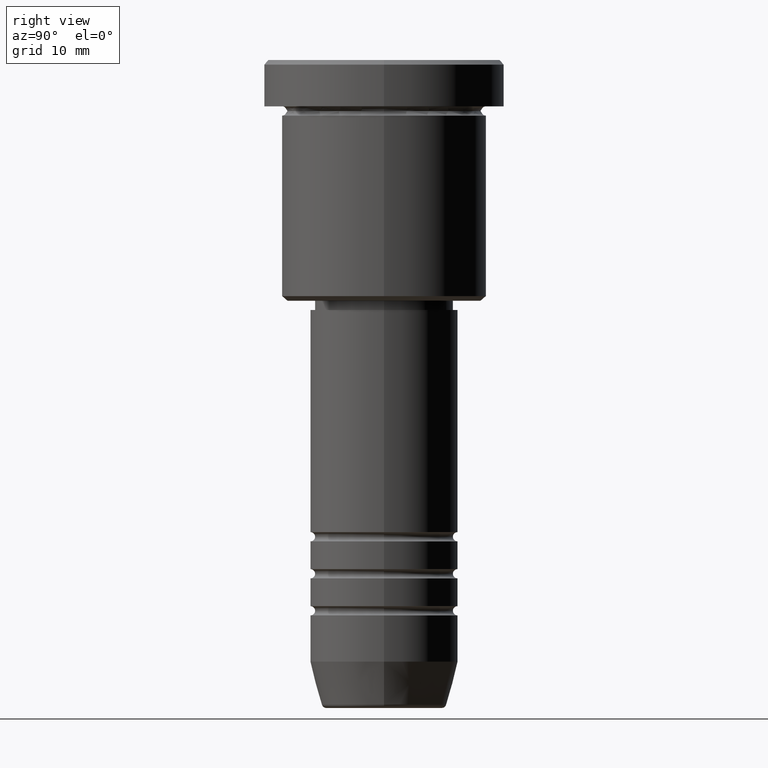
[diagram: clean part render]
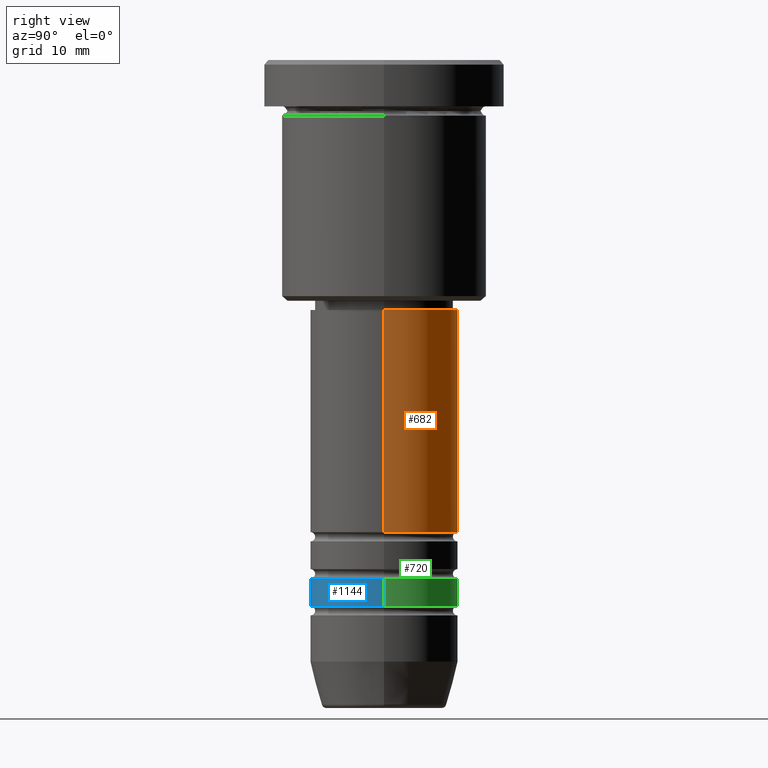
[diagram: same view with three faces highlighted in distinct colors, each labeled with its STEP entity id]
A machine part, right view with three faces highlighted in distinct colors.
Their STEP definitions:

[orange] entity #682 — the highlighted cylindrical surface (partial cylindrical patch) has radius 8 mm, axis along (-0, -0, 1).
#7 = VECTOR ( 'NONE', #954, 1000.000000000000000 ) ;
#45 = CIRCLE ( 'NONE', #925, 8.000000000000000000 ) ;
#95 = CIRCLE ( 'NONE', #771, 8.000000000000000000 ) ;
#106 = DIRECTION ( 'NONE',  ( -0.000000000000000000, -0.000000000000000000, 1.000000000000000000 ) ) ;
#119 = LINE ( 'NONE', #135, #7 ) ;
#124 = CARTESIAN_POINT ( 'NONE',  ( 8.000000000000000000, 0.000000000000000000, 0.000000000000000000 ) ) ;
#135 = CARTESIAN_POINT ( 'NONE',  ( -8.000000000000000000, 9.797174393178825657E-16, 0.000000000000000000 ) ) ;
#193 = FACE_OUTER_BOUND ( 'NONE', #818, .T. ) ;
#194 = VERTEX_POINT ( 'NONE', #991 ) ;
#269 = CARTESIAN_POINT ( 'NONE',  ( -8.000000000000000000, 9.797174393178825657E-16, -51.00000000000000000 ) ) ;
#275 = ORIENTED_EDGE ( 'NONE', *, *, #390, .T. ) ;
#355 = DIRECTION ( 'NONE',  ( 1.000000000000000000, 0.000000000000000000, 0.000000000000000000 ) ) ;
#378 = CARTESIAN_POINT ( 'NONE',  ( 0.000000000000000000, 0.000000000000000000, 0.000000000000000000 ) ) ;
#390 = EDGE_CURVE ( 'NONE', #881, #194, #119, .T. ) ;
#406 = EDGE_CURVE ( 'NONE', #816, #464, #1050, .T. ) ;
#464 = VERTEX_POINT ( 'NONE', #1120 ) ;
#486 = CARTESIAN_POINT ( 'NONE',  ( 8.000000000000000000, 0.000000000000000000, -51.00000000000000000 ) ) ;
#499 = ORIENTED_EDGE ( 'NONE', *, *, #406, .F. ) ;
#501 = CARTESIAN_POINT ( 'NONE',  ( 0.000000000000000000, 0.000000000000000000, -27.00000000000000355 ) ) ;
#516 = VECTOR ( 'NONE', #867, 1000.000000000000000 ) ;
#578 = DIRECTION ( 'NONE',  ( -0.000000000000000000, -0.000000000000000000, 1.000000000000000000 ) ) ;
#620 = ORIENTED_EDGE ( 'NONE', *, *, #1135, .T. ) ;
#628 = AXIS2_PLACEMENT_3D ( 'NONE', #378, #106, #746 ) ;
#659 = EDGE_CURVE ( 'NONE', #464, #194, #45, .T. ) ;
#682 = ADVANCED_FACE ( 'NONE', ( #193 ), #853, .T. ) ;
#712 = CARTESIAN_POINT ( 'NONE',  ( 0.000000000000000000, 0.000000000000000000, -51.00000000000000000 ) ) ;
#746 = DIRECTION ( 'NONE',  ( 1.000000000000000000, 0.000000000000000000, 0.000000000000000000 ) ) ;
#771 = AXIS2_PLACEMENT_3D ( 'NONE', #712, #1179, #355 ) ;
#780 = ORIENTED_EDGE ( 'NONE', *, *, #659, .F. ) ;
#816 = VERTEX_POINT ( 'NONE', #486 ) ;
#818 = EDGE_LOOP ( 'NONE', ( #620, #275, #780, #499 ) ) ;
#853 = CYLINDRICAL_SURFACE ( 'NONE', #628, 8.000000000000000000 ) ;
#861 = DIRECTION ( 'NONE',  ( 1.000000000000000000, 0.000000000000000000, 0.000000000000000000 ) ) ;
#867 = DIRECTION ( 'NONE',  ( -0.000000000000000000, -0.000000000000000000, 1.000000000000000000 ) ) ;
#881 = VERTEX_POINT ( 'NONE', #269 ) ;
#925 = AXIS2_PLACEMENT_3D ( 'NONE', #501, #578, #861 ) ;
#954 = DIRECTION ( 'NONE',  ( -0.000000000000000000, -0.000000000000000000, 1.000000000000000000 ) ) ;
#991 = CARTESIAN_POINT ( 'NONE',  ( -8.000000000000000000, 9.797174393178825657E-16, -27.00000000000000355 ) ) ;
#1050 = LINE ( 'NONE', #124, #516 ) ;
#1120 = CARTESIAN_POINT ( 'NONE',  ( 8.000000000000000000, 0.000000000000000000, -27.00000000000000355 ) ) ;
#1135 = EDGE_CURVE ( 'NONE', #816, #881, #95, .T. ) ;
#1179 = DIRECTION ( 'NONE',  ( -0.000000000000000000, -0.000000000000000000, 1.000000000000000000 ) ) ;

[blue] entity #1144 — the highlighted cylindrical surface (partial cylindrical patch) has radius 8 mm, axis along (-0, -0, 1).
#30 = EDGE_CURVE ( 'NONE', #1145, #838, #801, .T. ) ;
#42 = AXIS2_PLACEMENT_3D ( 'NONE', #265, #527, #1092 ) ;
#138 = CARTESIAN_POINT ( 'NONE',  ( 8.000000000000000000, 0.000000000000000000, 0.000000000000000000 ) ) ;
#139 = ORIENTED_EDGE ( 'NONE', *, *, #752, .F. ) ;
#151 = CIRCLE ( 'NONE', #565, 8.000000000000000000 ) ;
#159 = CARTESIAN_POINT ( 'NONE',  ( 8.000000000000000000, 0.000000000000000000, -58.99999999999999289 ) ) ;
#179 = CARTESIAN_POINT ( 'NONE',  ( 8.000000000000000000, 0.000000000000000000, -55.99999999999999289 ) ) ;
#196 = ORIENTED_EDGE ( 'NONE', *, *, #30, .T. ) ;
#210 = CARTESIAN_POINT ( 'NONE',  ( 0.000000000000000000, 0.000000000000000000, -55.99999999999999289 ) ) ;
#242 = VERTEX_POINT ( 'NONE', #755 ) ;
#259 = DIRECTION ( 'NONE',  ( -0.000000000000000000, -0.000000000000000000, 1.000000000000000000 ) ) ;
#265 = CARTESIAN_POINT ( 'NONE',  ( 0.000000000000000000, 0.000000000000000000, -58.99999999999999289 ) ) ;
#279 = ORIENTED_EDGE ( 'NONE', *, *, #1130, .T. ) ;
#436 = CARTESIAN_POINT ( 'NONE',  ( 0.000000000000000000, 0.000000000000000000, 0.000000000000000000 ) ) ;
#471 = DIRECTION ( 'NONE',  ( 1.000000000000000000, 0.000000000000000000, 0.000000000000000000 ) ) ;
#527 = DIRECTION ( 'NONE',  ( -0.000000000000000000, -0.000000000000000000, 1.000000000000000000 ) ) ;
#565 = AXIS2_PLACEMENT_3D ( 'NONE', #210, #959, #471 ) ;
#632 = FACE_OUTER_BOUND ( 'NONE', #695, .T. ) ;
#670 = DIRECTION ( 'NONE',  ( -0.000000000000000000, -0.000000000000000000, 1.000000000000000000 ) ) ;
#695 = EDGE_LOOP ( 'NONE', ( #139, #279, #196, #1176 ) ) ;
#749 = CARTESIAN_POINT ( 'NONE',  ( -8.000000000000000000, 9.797174393178825657E-16, 0.000000000000000000 ) ) ;
#752 = EDGE_CURVE ( 'NONE', #1091, #242, #920, .T. ) ;
#755 = CARTESIAN_POINT ( 'NONE',  ( -8.000000000000000000, 9.797174393178825657E-16, -55.99999999999999289 ) ) ;
#801 = LINE ( 'NONE', #138, #1061 ) ;
#812 = EDGE_CURVE ( 'NONE', #242, #838, #151, .T. ) ;
#838 = VERTEX_POINT ( 'NONE', #179 ) ;
#862 = DIRECTION ( 'NONE',  ( -0.000000000000000000, -0.000000000000000000, 1.000000000000000000 ) ) ;
#870 = CARTESIAN_POINT ( 'NONE',  ( -8.000000000000000000, 9.797174393178825657E-16, -58.99999999999999289 ) ) ;
#890 = CYLINDRICAL_SURFACE ( 'NONE', #1040, 8.000000000000000000 ) ;
#920 = LINE ( 'NONE', #749, #1081 ) ;
#959 = DIRECTION ( 'NONE',  ( -0.000000000000000000, -0.000000000000000000, 1.000000000000000000 ) ) ;
#1040 = AXIS2_PLACEMENT_3D ( 'NONE', #436, #259, #1071 ) ;
#1061 = VECTOR ( 'NONE', #862, 1000.000000000000000 ) ;
#1071 = DIRECTION ( 'NONE',  ( 1.000000000000000000, 0.000000000000000000, 0.000000000000000000 ) ) ;
#1081 = VECTOR ( 'NONE', #670, 1000.000000000000000 ) ;
#1082 = CIRCLE ( 'NONE', #42, 8.000000000000000000 ) ;
#1091 = VERTEX_POINT ( 'NONE', #870 ) ;
#1092 = DIRECTION ( 'NONE',  ( 1.000000000000000000, 0.000000000000000000, 0.000000000000000000 ) ) ;
#1130 = EDGE_CURVE ( 'NONE', #1091, #1145, #1082, .T. ) ;
#1144 = ADVANCED_FACE ( 'NONE', ( #632 ), #890, .T. ) ;
#1145 = VERTEX_POINT ( 'NONE', #159 ) ;
#1176 = ORIENTED_EDGE ( 'NONE', *, *, #812, .F. ) ;

[green] entity #720 — the highlighted cylindrical surface (partial cylindrical patch) has radius 8 mm, axis along (-0, -0, 1).
#30 = EDGE_CURVE ( 'NONE', #1145, #838, #801, .T. ) ;
#88 = ORIENTED_EDGE ( 'NONE', *, *, #30, .F. ) ;
#99 = AXIS2_PLACEMENT_3D ( 'NONE', #1057, #225, #689 ) ;
#138 = CARTESIAN_POINT ( 'NONE',  ( 8.000000000000000000, 0.000000000000000000, 0.000000000000000000 ) ) ;
#159 = CARTESIAN_POINT ( 'NONE',  ( 8.000000000000000000, 0.000000000000000000, -58.99999999999999289 ) ) ;
#161 = ORIENTED_EDGE ( 'NONE', *, *, #752, .T. ) ;
#166 = ORIENTED_EDGE ( 'NONE', *, *, #218, .F. ) ;
#179 = CARTESIAN_POINT ( 'NONE',  ( 8.000000000000000000, 0.000000000000000000, -55.99999999999999289 ) ) ;
#218 = EDGE_CURVE ( 'NONE', #838, #242, #413, .T. ) ;
#225 = DIRECTION ( 'NONE',  ( -0.000000000000000000, -0.000000000000000000, 1.000000000000000000 ) ) ;
#242 = VERTEX_POINT ( 'NONE', #755 ) ;
#349 = AXIS2_PLACEMENT_3D ( 'NONE', #807, #1173, #969 ) ;
#361 = EDGE_CURVE ( 'NONE', #1145, #1091, #868, .T. ) ;
#371 = CARTESIAN_POINT ( 'NONE',  ( 0.000000000000000000, 0.000000000000000000, -55.99999999999999289 ) ) ;
#413 = CIRCLE ( 'NONE', #982, 8.000000000000000000 ) ;
#461 = DIRECTION ( 'NONE',  ( -0.000000000000000000, -0.000000000000000000, 1.000000000000000000 ) ) ;
#465 = DIRECTION ( 'NONE',  ( 1.000000000000000000, 0.000000000000000000, 0.000000000000000000 ) ) ;
#507 = EDGE_LOOP ( 'NONE', ( #675, #161, #166, #88 ) ) ;
#670 = DIRECTION ( 'NONE',  ( -0.000000000000000000, -0.000000000000000000, 1.000000000000000000 ) ) ;
#675 = ORIENTED_EDGE ( 'NONE', *, *, #361, .T. ) ;
#689 = DIRECTION ( 'NONE',  ( 1.000000000000000000, 0.000000000000000000, 0.000000000000000000 ) ) ;
#699 = CYLINDRICAL_SURFACE ( 'NONE', #99, 8.000000000000000000 ) ;
#720 = ADVANCED_FACE ( 'NONE', ( #1131 ), #699, .T. ) ;
#749 = CARTESIAN_POINT ( 'NONE',  ( -8.000000000000000000, 9.797174393178825657E-16, 0.000000000000000000 ) ) ;
#752 = EDGE_CURVE ( 'NONE', #1091, #242, #920, .T. ) ;
#755 = CARTESIAN_POINT ( 'NONE',  ( -8.000000000000000000, 9.797174393178825657E-16, -55.99999999999999289 ) ) ;
#801 = LINE ( 'NONE', #138, #1061 ) ;
#807 = CARTESIAN_POINT ( 'NONE',  ( 0.000000000000000000, 0.000000000000000000, -58.99999999999999289 ) ) ;
#838 = VERTEX_POINT ( 'NONE', #179 ) ;
#862 = DIRECTION ( 'NONE',  ( -0.000000000000000000, -0.000000000000000000, 1.000000000000000000 ) ) ;
#868 = CIRCLE ( 'NONE', #349, 8.000000000000000000 ) ;
#870 = CARTESIAN_POINT ( 'NONE',  ( -8.000000000000000000, 9.797174393178825657E-16, -58.99999999999999289 ) ) ;
#920 = LINE ( 'NONE', #749, #1081 ) ;
#969 = DIRECTION ( 'NONE',  ( 1.000000000000000000, 0.000000000000000000, 0.000000000000000000 ) ) ;
#982 = AXIS2_PLACEMENT_3D ( 'NONE', #371, #461, #465 ) ;
#1057 = CARTESIAN_POINT ( 'NONE',  ( 0.000000000000000000, 0.000000000000000000, 0.000000000000000000 ) ) ;
#1061 = VECTOR ( 'NONE', #862, 1000.000000000000000 ) ;
#1081 = VECTOR ( 'NONE', #670, 1000.000000000000000 ) ;
#1091 = VERTEX_POINT ( 'NONE', #870 ) ;
#1131 = FACE_OUTER_BOUND ( 'NONE', #507, .T. ) ;
#1145 = VERTEX_POINT ( 'NONE', #159 ) ;
#1173 = DIRECTION ( 'NONE',  ( -0.000000000000000000, -0.000000000000000000, 1.000000000000000000 ) ) ;